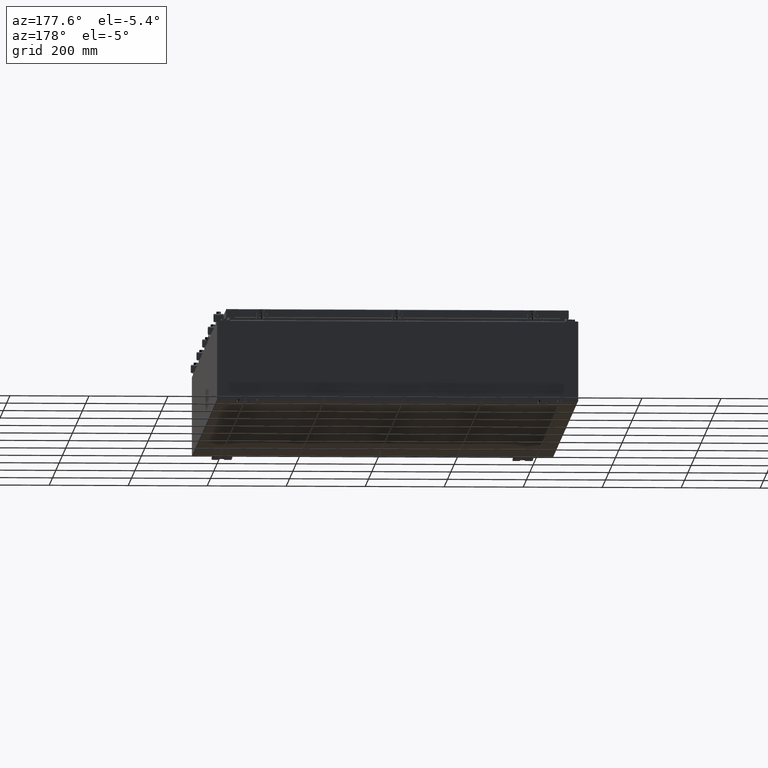
[diagram: clean part render]
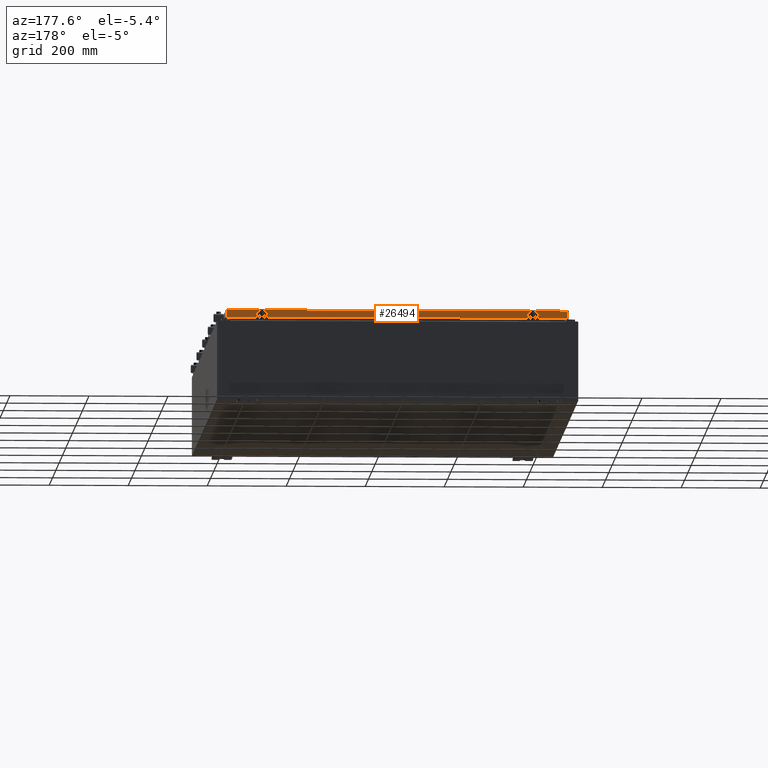
[diagram: same view with one face highlighted and labeled with its STEP entity id]
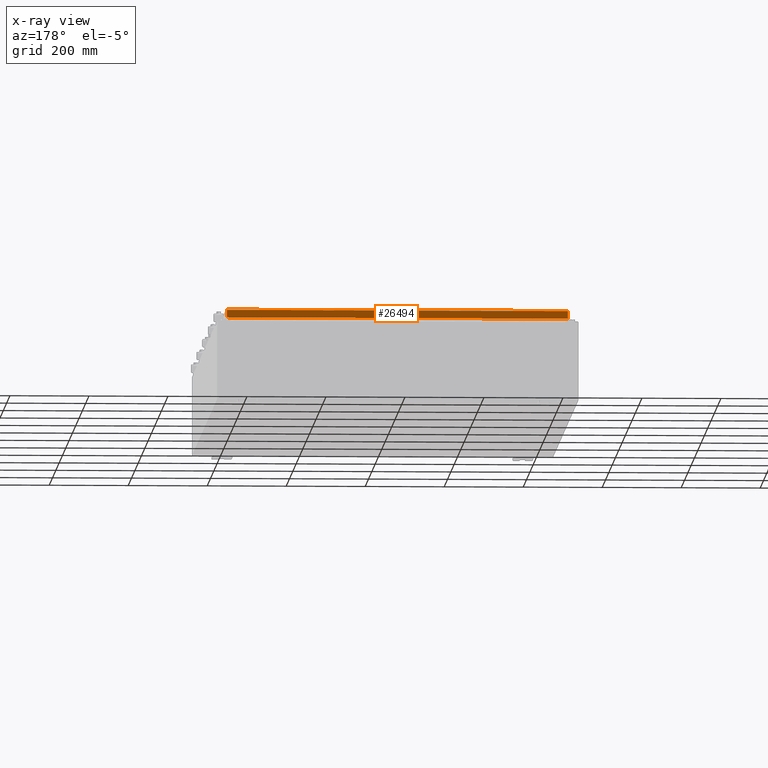
[diagram: x-ray of the same camera — body ghosted, the highlighted face saturated]
A machine part, auxiliary view. The second image highlights one B-rep face of the part: STEP entity #26494.
The next image is the same camera in x-ray: the body ghosted, the highlighted face saturated — about 0% of this face is hidden behind the body in this view.
In plain terms, the highlighted planar face has unit normal (0, -1, -0).
Its self-contained STEP definition (entity closure, byte-faithful):
#2814 = VERTEX_POINT ( 'NONE', #36698 ) ;
#4290 = DIRECTION ( 'NONE',  ( 0.0000000000000000000, 5.637761885544689500E-015, -1.000000000000000000 ) ) ;
#4360 = EDGE_CURVE ( 'NONE', #28177, #14450, #24069, .T. ) ;
#4695 = VERTEX_POINT ( 'NONE', #58913 ) ;
#9446 = ORIENTED_EDGE ( 'NONE', *, *, #4360, .F. ) ;
#10458 = DIRECTION ( 'NONE',  ( 1.000000000000000000, -0.0000000000000000000, 1.239713195391617400E-016 ) ) ;
#11387 = EDGE_CURVE ( 'NONE', #14450, #13556, #63473, .T. ) ;
#13181 = VECTOR ( 'NONE', #49633, 39.37007874015748100 ) ;
#13556 = VERTEX_POINT ( 'NONE', #56681 ) ;
#13820 = DIRECTION ( 'NONE',  ( -0.0000000000000000000, 5.637761885544689500E-015, -1.000000000000000000 ) ) ;
#14450 = VERTEX_POINT ( 'NONE', #62658 ) ;
#14775 = EDGE_CURVE ( 'NONE', #16291, #2814, #26515, .T. ) ;
#16291 = VERTEX_POINT ( 'NONE', #36614 ) ;
#21564 = ORIENTED_EDGE ( 'NONE', *, *, #14775, .F. ) ;
#21959 = LINE ( 'NONE', #28994, #35449 ) ;
#22188 = ORIENTED_EDGE ( 'NONE', *, *, #58432, .F. ) ;
#24069 = LINE ( 'NONE', #58184, #35934 ) ;
#24550 = DIRECTION ( 'NONE',  ( 0.0000000000000000000, 5.637761885544689500E-015, -1.000000000000000000 ) ) ;
#25359 = EDGE_CURVE ( 'NONE', #16291, #13556, #51532, .T. ) ;
#26494 = ADVANCED_FACE ( 'NONE', ( #41049 ), #41291, .F. ) ;
#26515 = LINE ( 'NONE', #63692, #13181 ) ;
#27796 = CARTESIAN_POINT ( 'NONE',  ( -16.23915786437625600, 29.09400000000000100, -0.8500000000000037500 ) ) ;
#28177 = VERTEX_POINT ( 'NONE', #27796 ) ;
#28994 = CARTESIAN_POINT ( 'NONE',  ( -16.98915786437626400, 29.09400000000000100, -0.07469999999999958600 ) ) ;
#29931 = CARTESIAN_POINT ( 'NONE',  ( 16.98915786437627100, 29.09400000000000100, 1.642858579540487400E-013 ) ) ;
#30540 = CARTESIAN_POINT ( 'NONE',  ( -17.07799999999999600, 29.09400000000000500, -0.8500000000000038600 ) ) ;
#31168 = DIRECTION ( 'NONE',  ( 1.000000000000000000, -0.0000000000000000000, 1.239713195391617400E-016 ) ) ;
#32223 = DIRECTION ( 'NONE',  ( 1.000000000000000000, -0.0000000000000000000, -0.0000000000000000000 ) ) ;
#34075 = ORIENTED_EDGE ( 'NONE', *, *, #11387, .F. ) ;
#35449 = VECTOR ( 'NONE', #13820, 39.37007874015748100 ) ;
#35934 = VECTOR ( 'NONE', #32223, 39.37007874015748100 ) ;
#36614 = CARTESIAN_POINT ( 'NONE',  ( 16.98915786437627100, 29.09400000000000100, -0.08769999999999547600 ) ) ;
#36698 = CARTESIAN_POINT ( 'NONE',  ( -16.98915786437626400, 29.09400000000000100, -0.08769999999999549000 ) ) ;
#38584 = VECTOR ( 'NONE', #24550, 39.37007874015748100 ) ;
#40432 = VECTOR ( 'NONE', #31168, 39.37007874015748100 ) ;
#41049 = FACE_OUTER_BOUND ( 'NONE', #50229, .T. ) ;
#41291 = PLANE ( 'NONE',  #51768 ) ;
#45926 = CARTESIAN_POINT ( 'NONE',  ( -17.07799999999999600, 29.09400000000000500, -0.8500000000000038600 ) ) ;
#48930 = ORIENTED_EDGE ( 'NONE', *, *, #53581, .F. ) ;
#49633 = DIRECTION ( 'NONE',  ( -1.000000000000000000, -6.989207801985677300E-031, -3.922586267643528000E-045 ) ) ;
#50229 = EDGE_LOOP ( 'NONE', ( #21564, #57945, #34075, #9446, #48930, #22188 ) ) ;
#51210 = VECTOR ( 'NONE', #10458, 39.37007874015748100 ) ;
#51532 = LINE ( 'NONE', #29931, #38584 ) ;
#51768 = AXIS2_PLACEMENT_3D ( 'NONE', #59136, #62245, #4290 ) ;
#53343 = LINE ( 'NONE', #45926, #40432 ) ;
#53581 = EDGE_CURVE ( 'NONE', #4695, #28177, #53343, .T. ) ;
#56681 = CARTESIAN_POINT ( 'NONE',  ( 16.98915786437627100, 29.09400000000000500, -0.8499999999999996400 ) ) ;
#57945 = ORIENTED_EDGE ( 'NONE', *, *, #25359, .T. ) ;
#58184 = CARTESIAN_POINT ( 'NONE',  ( -16.23915786437626400, 29.09400000000000100, -0.8500000000000037500 ) ) ;
#58432 = EDGE_CURVE ( 'NONE', #2814, #4695, #21959, .T. ) ;
#58913 = CARTESIAN_POINT ( 'NONE',  ( -16.98915786437626400, 29.09400000000000500, -0.8500000000000038600 ) ) ;
#59136 = CARTESIAN_POINT ( 'NONE',  ( -2.033440117909712900E-029, 29.09400000000000100, 1.642858579540487400E-013 ) ) ;
#62245 = DIRECTION ( 'NONE',  ( 6.989207801985676400E-031, -1.000000000000000000, -5.637761885544689500E-015 ) ) ;
#62658 = CARTESIAN_POINT ( 'NONE',  ( 16.23915786437627100, 29.09400000000000100, -0.8500000000000037500 ) ) ;
#63473 = LINE ( 'NONE', #30540, #51210 ) ;
#63692 = CARTESIAN_POINT ( 'NONE',  ( -17.07799999999999600, 29.09400000000000100, -0.08769999999999547600 ) ) ;